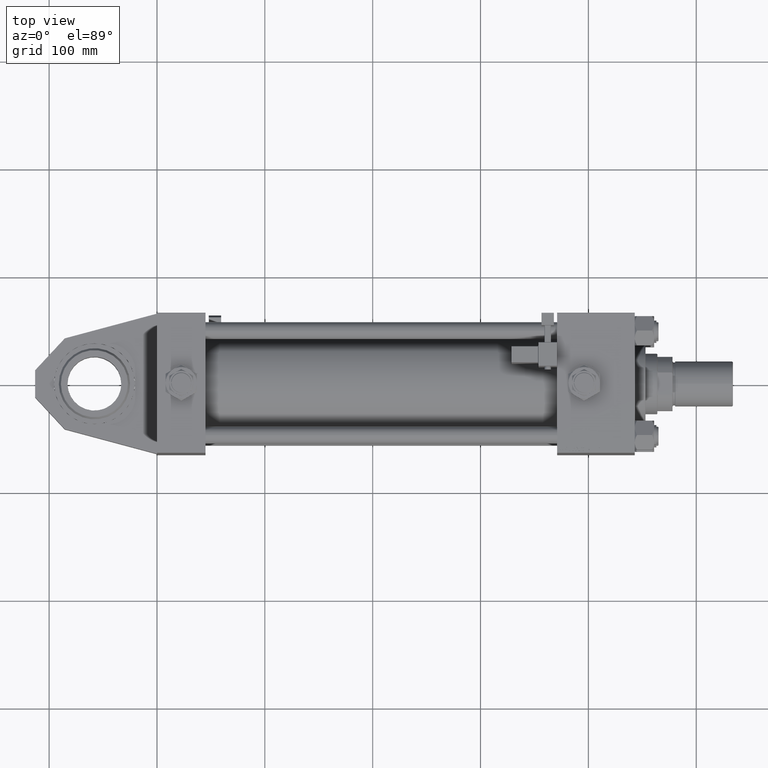
[diagram: clean part render]
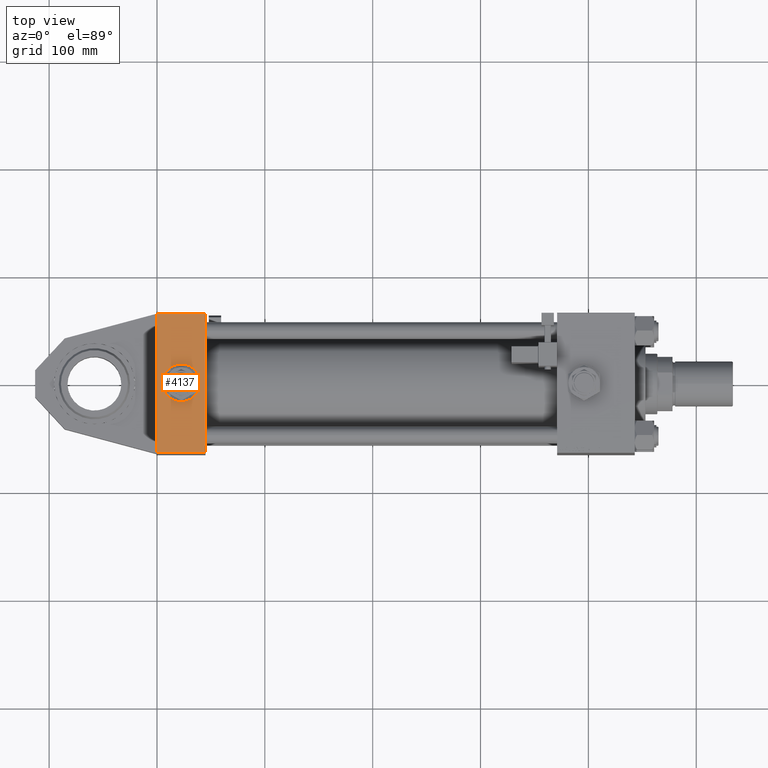
[diagram: same view with one face highlighted and labeled with its STEP entity id]
A machine part, top view. The second image highlights one B-rep face of the part: STEP entity #4137.
In plain terms, the highlighted planar face has unit normal (0, 0, 1).
Its self-contained STEP definition (entity closure, byte-faithful):
#83 = DIRECTION ( 'NONE',  ( 0.000000000000000000, -0.000000000000000000, 1.000000000000000000 ) ) ;
#250 = VERTEX_POINT ( 'NONE', #48802 ) ;
#1754 = DIRECTION ( 'NONE',  ( 0.000000000000000000, 0.000000000000000000, -1.000000000000000000 ) ) ;
#2334 = ORIENTED_EDGE ( 'NONE', *, *, #2989, .T. ) ;
#2401 = CARTESIAN_POINT ( 'NONE',  ( 45.00000000000000000, 65.00000000000000000, -64.49999999999995737 ) ) ;
#2582 = DIRECTION ( 'NONE',  ( 0.000000000000000000, 0.000000000000000000, 1.000000000000000000 ) ) ;
#2989 = EDGE_CURVE ( 'NONE', #250, #51462, #27868, .T. ) ;
#3255 = CARTESIAN_POINT ( 'NONE',  ( 45.00000000000000000, 65.00000000000000000, 64.49999999999998579 ) ) ;
#3272 = DIRECTION ( 'NONE',  ( 0.000000000000000000, 0.000000000000000000, -1.000000000000000000 ) ) ;
#3950 = AXIS2_PLACEMENT_3D ( 'NONE', #4286, #54974, #83 ) ;
#4137 = ADVANCED_FACE ( 'NONE', ( #47104, #25576 ), #8770, .T. ) ;
#4286 = CARTESIAN_POINT ( 'NONE',  ( 45.00000000000000000, 65.00000000000000000, 65.00000000000001421 ) ) ;
#6360 = VERTEX_POINT ( 'NONE', #50873 ) ;
#6494 = VERTEX_POINT ( 'NONE', #27853 ) ;
#7009 = ORIENTED_EDGE ( 'NONE', *, *, #52797, .T. ) ;
#7717 = EDGE_CURVE ( 'NONE', #48497, #6494, #18410, .T. ) ;
#7877 = DIRECTION ( 'NONE',  ( 0.000000000000000000, 0.000000000000000000, 1.000000000000000000 ) ) ;
#8770 = PLANE ( 'NONE',  #3950 ) ;
#10400 = AXIS2_PLACEMENT_3D ( 'NONE', #28855, #46491, #7877 ) ;
#12182 = EDGE_CURVE ( 'NONE', #6360, #20259, #23713, .T. ) ;
#13760 = ORIENTED_EDGE ( 'NONE', *, *, #26480, .F. ) ;
#15193 = DIRECTION ( 'NONE',  ( 0.000000000000000000, 1.000000000000000000, 0.000000000000000000 ) ) ;
#18410 = CIRCLE ( 'NONE', #31818, 17.50000000000000000 ) ;
#19396 = LINE ( 'NONE', #23306, #34130 ) ;
#20259 = VERTEX_POINT ( 'NONE', #40905 ) ;
#20777 = VECTOR ( 'NONE', #3272, 1000.000000000000000 ) ;
#21122 = CIRCLE ( 'NONE', #10400, 17.50000000000000000 ) ;
#23306 = CARTESIAN_POINT ( 'NONE',  ( 0.000000000000000000, 65.00000000000000000, 65.00000000000001421 ) ) ;
#23713 = LINE ( 'NONE', #3255, #35528 ) ;
#25576 = FACE_OUTER_BOUND ( 'NONE', #38889, .T. ) ;
#26480 = EDGE_CURVE ( 'NONE', #6494, #48497, #21122, .T. ) ;
#27853 = CARTESIAN_POINT ( 'NONE',  ( 22.50000000000000000, 65.00000000000000000, 17.50000000000000000 ) ) ;
#27868 = LINE ( 'NONE', #2401, #40522 ) ;
#28855 = CARTESIAN_POINT ( 'NONE',  ( 22.50000000000000000, 65.00000000000000000, 0.000000000000000000 ) ) ;
#31818 = AXIS2_PLACEMENT_3D ( 'NONE', #53554, #15193, #2582 ) ;
#32654 = LINE ( 'NONE', #33199, #20777 ) ;
#33199 = CARTESIAN_POINT ( 'NONE',  ( 45.00000000000000000, 65.00000000000000000, 65.00000000000001421 ) ) ;
#33692 = CARTESIAN_POINT ( 'NONE',  ( 22.50000000000000355, 65.00000000000000000, -17.50000000000000000 ) ) ;
#34130 = VECTOR ( 'NONE', #1754, 1000.000000000000000 ) ;
#35500 = ORIENTED_EDGE ( 'NONE', *, *, #12182, .T. ) ;
#35528 = VECTOR ( 'NONE', #44961, 1000.000000000000000 ) ;
#38889 = EDGE_LOOP ( 'NONE', ( #7009, #2334, #48902, #35500 ) ) ;
#40522 = VECTOR ( 'NONE', #54744, 1000.000000000000000 ) ;
#40905 = CARTESIAN_POINT ( 'NONE',  ( 45.00000000000000000, 65.00000000000000000, 64.49999999999998579 ) ) ;
#41507 = EDGE_LOOP ( 'NONE', ( #13760, #44674 ) ) ;
#44674 = ORIENTED_EDGE ( 'NONE', *, *, #7717, .F. ) ;
#44961 = DIRECTION ( 'NONE',  ( 1.000000000000000000, 0.000000000000000000, 0.000000000000000000 ) ) ;
#46491 = DIRECTION ( 'NONE',  ( 0.000000000000000000, 1.000000000000000000, 0.000000000000000000 ) ) ;
#47104 = FACE_BOUND ( 'NONE', #41507, .T. ) ;
#48223 = CARTESIAN_POINT ( 'NONE',  ( 0.000000000000000000, 65.00000000000000000, -64.49999999999995737 ) ) ;
#48497 = VERTEX_POINT ( 'NONE', #33692 ) ;
#48802 = CARTESIAN_POINT ( 'NONE',  ( 45.00000000000000000, 65.00000000000000000, -64.49999999999995737 ) ) ;
#48902 = ORIENTED_EDGE ( 'NONE', *, *, #52341, .F. ) ;
#50873 = CARTESIAN_POINT ( 'NONE',  ( 0.000000000000000000, 65.00000000000000000, 64.49999999999998579 ) ) ;
#51462 = VERTEX_POINT ( 'NONE', #48223 ) ;
#52341 = EDGE_CURVE ( 'NONE', #6360, #51462, #19396, .T. ) ;
#52797 = EDGE_CURVE ( 'NONE', #20259, #250, #32654, .T. ) ;
#53554 = CARTESIAN_POINT ( 'NONE',  ( 22.50000000000000000, 65.00000000000000000, 0.000000000000000000 ) ) ;
#54744 = DIRECTION ( 'NONE',  ( -1.000000000000000000, 0.000000000000000000, 0.000000000000000000 ) ) ;
#54974 = DIRECTION ( 'NONE',  ( -0.000000000000000000, 1.000000000000000000, 0.000000000000000000 ) ) ;